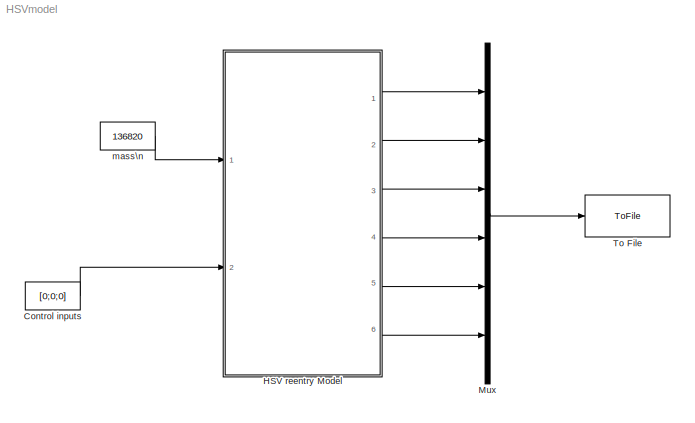
MODEL HSVmodel
KIND model
CONFIG InitFcn = Init_AeroSpaceBlk
BLOCK [Constant] Control inputs
  SID = 1
  Value = [0;0;0]
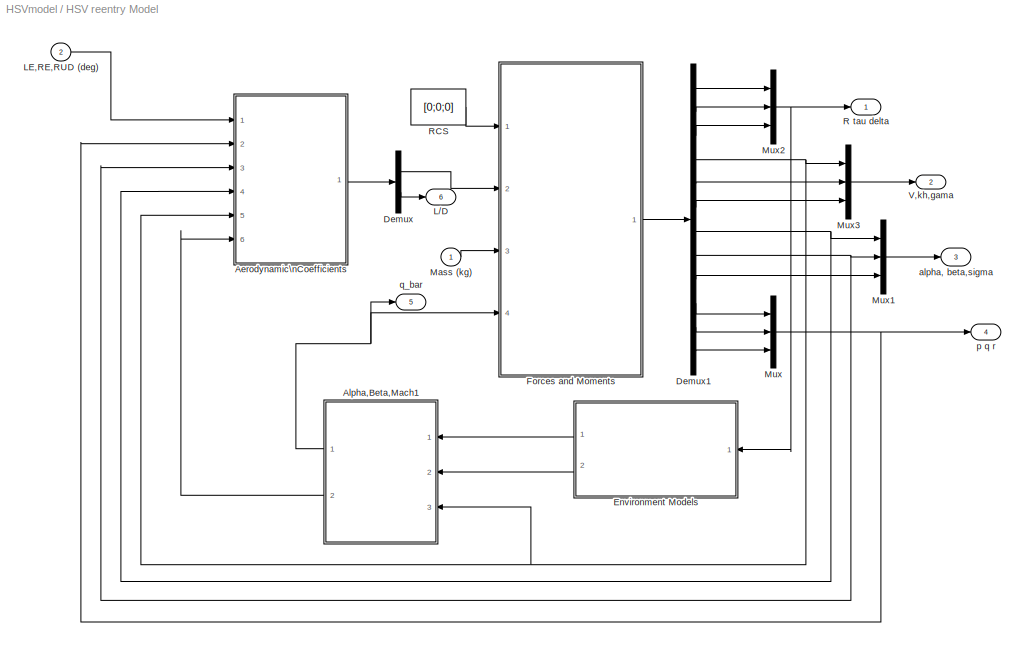
BLOCK [SubSystem] HSV reentry Model
  Ports = [2, 6]
  RequestExecContextInheritance = off
  SID = 2
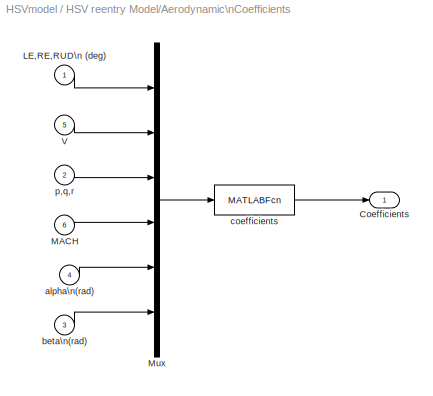
BLOCK [SubSystem] HSV reentry Model/Aerodynamic\nCoefficients
  Ports = [6, 1]
  RequestExecContextInheritance = off
  SID = 6
BLOCK [Outport] HSV reentry Model/Aerodynamic\nCoefficients/Coefficients
  IconDisplay = Port number
  InitialOutput = 0
  SID = 15
BLOCK [Inport] HSV reentry Model/Aerodynamic\nCoefficients/LE,RE,RUD\n (deg)
  IconDisplay = Port number
  SID = 7
BLOCK [Inport] HSV reentry Model/Aerodynamic\nCoefficients/MACH
  IconDisplay = Port number
  Port = 6
  SID = 12
BLOCK [Mux] HSV reentry Model/Aerodynamic\nCoefficients/Mux
  DisplayOption = bar
  Inputs = 6
  Ports = [6, 1]
  SID = 13
BLOCK [Inport] HSV reentry Model/Aerodynamic\nCoefficients/V
  IconDisplay = Port number
  Port = 5
  PortDimensions = 1
  SID = 11
BLOCK [Inport] HSV reentry Model/Aerodynamic\nCoefficients/alpha\n(rad)
  IconDisplay = Port number
  Port = 4
  SID = 10
BLOCK [Inport] HSV reentry Model/Aerodynamic\nCoefficients/beta\n(rad)
  IconDisplay = Port number
  Port = 3
  SID = 9
BLOCK [MATLABFcn] HSV reentry Model/Aerodynamic\nCoefficients/coefficients
  MATLABFcn = coefficients_new
  Output1D = off
  OutputDimensions = 7
  Ports = [1, 1]
  SID = 14
BLOCK [Inport] HSV reentry Model/Aerodynamic\nCoefficients/p,q,r
  IconDisplay = Port number
  Port = 2
  SID = 8
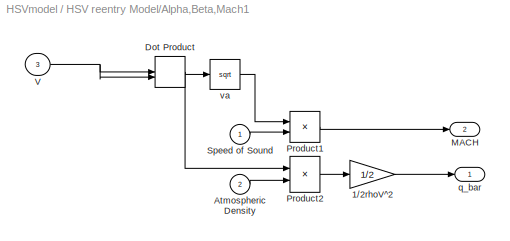
BLOCK [SubSystem] HSV reentry Model/Alpha,Beta,Mach1
  Ports = [3, 2]
  RequestExecContextInheritance = off
  SID = 16
BLOCK [Gain] HSV reentry Model/Alpha,Beta,Mach1/1//2rhoV^2
  Gain = 1/2
  SID = 20
BLOCK [Inport] HSV reentry Model/Alpha,Beta,Mach1/Atmospheric Density
  IconDisplay = Port number
  Port = 2
  SID = 18
BLOCK [DotProduct] HSV reentry Model/Alpha,Beta,Mach1/Dot Product
  OutDataTypeStr = Inherit: Inherit via internal rule
  SID = 21
BLOCK [Outport] HSV reentry Model/Alpha,Beta,Mach1/MACH
  IconDisplay = Port number
  Port = 2
  SID = 26
BLOCK [Product] HSV reentry Model/Alpha,Beta,Mach1/Product1
  Inputs = */
  Ports = [2, 1]
  RndMeth = Floor
  SID = 22
BLOCK [Product] HSV reentry Model/Alpha,Beta,Mach1/Product2
  Ports = [2, 1]
  RndMeth = Floor
  SID = 23
BLOCK [Inport] HSV reentry Model/Alpha,Beta,Mach1/Speed of Sound
  IconDisplay = Port number
  SID = 17
BLOCK [Inport] HSV reentry Model/Alpha,Beta,Mach1/V
  IconDisplay = Port number
  Port = 3
  PortDimensions = 1
  SID = 19
BLOCK [Outport] HSV reentry Model/Alpha,Beta,Mach1/q_bar
  IconDisplay = Port number
  InitialOutput = 0
  SID = 25
BLOCK [Math] HSV reentry Model/Alpha,Beta,Mach1/va
  Operator = sqrt
  Ports = [1, 1]
  SID = 24
BLOCK [Demux] HSV reentry Model/Demux
  DisplayOption = bar
  Outputs = [6;1]
  Ports = [1, 2]
  SID = 27
BLOCK [Demux] HSV reentry Model/Demux1
  DisplayOption = bar
  Outputs = 12
  Ports = [1, 12]
  SID = 28
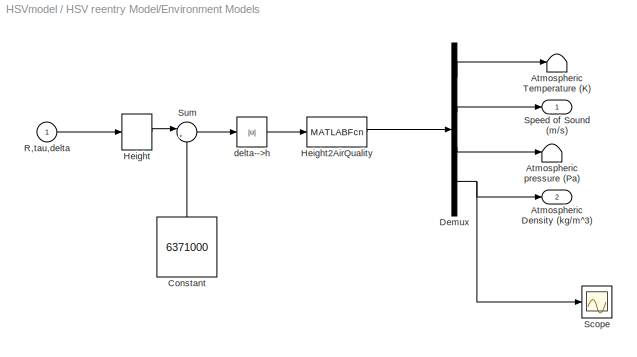
BLOCK [SubSystem] HSV reentry Model/Environment Models
  Ports = [1, 2]
  RequestExecContextInheritance = off
  SID = 29
BLOCK [Outport] HSV reentry Model/Environment Models/Atmospheric Density (kg//m^3)
  IconDisplay = Port number
  Port = 2
  SID = 41
BLOCK [Terminator] HSV reentry Model/Environment Models/Atmospheric Temperature (K)
  SID = 31
BLOCK [Terminator] HSV reentry Model/Environment Models/Atmospheric pressure (Pa)
  SID = 32
BLOCK [Constant] HSV reentry Model/Environment Models/Constant
  SID = 33
  Value = 6371000
BLOCK [Demux] HSV reentry Model/Environment Models/Demux
  Ports = [1, 4]
  SID = 34
BLOCK [Selector] HSV reentry Model/Environment Models/Height
  Indices = [1]
  InputPortWidth = 3
  Ports = [1, 1]
  SID = 35
BLOCK [MATLABFcn] HSV reentry Model/Environment Models/Height2AirQuality
  MATLABFcn = Sub_Height2AirQuality
  Output1D = off
  OutputDimensions = 4
  OutputSignalType = real
  Ports = [1, 1]
  SID = 36
BLOCK [Inport] HSV reentry Model/Environment Models/R,tau,delta
  IconDisplay = Port number
  PortDimensions = 3
  SID = 30
BLOCK [Scope] HSV reentry Model/Environment Models/Scope
  DataFormat = StructureWithTime
  Floating = off
  NumInputPorts = 1
  Ports = [1]
  SID = 37
  SampleTime = 0
  SaveName = ScopeData1
  ShowLegends = off
BLOCK [Outport] HSV reentry Model/Environment Models/Speed of Sound (m//s)
  IconDisplay = Port number
  SID = 40
BLOCK [Sum] HSV reentry Model/Environment Models/Sum
  IconShape = round
  InputSameDT = off
  Inputs = |+-
  OutDataTypeStr = Inherit: Inherit via internal rule
  Ports = [2, 1]
  SID = 38
  SaturateOnIntegerOverflow = off
BLOCK [Abs] HSV reentry Model/Environment Models/delta-->h
  SID = 39
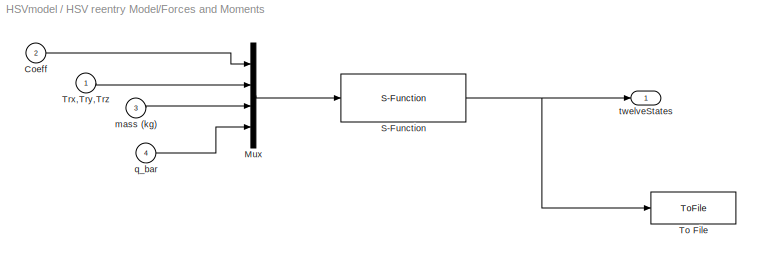
BLOCK [SubSystem] HSV reentry Model/Forces and Moments
  Ports = [4, 1]
  RequestExecContextInheritance = off
  SID = 42
BLOCK [Inport] HSV reentry Model/Forces and Moments/Coeff
  IconDisplay = Port number
  Port = 2
  SID = 44
BLOCK [Mux] HSV reentry Model/Forces and Moments/Mux
  DisplayOption = bar
  Ports = [4, 1]
  SID = 47
BLOCK [S-Function] HSV reentry Model/Forces and Moments/S-Function
  EnableBusSupport = off
  FunctionName = HSVmodel
  Ports = [1, 1]
  SID = 48
BLOCK [ToFile] HSV reentry Model/Forces and Moments/To File
  Filename = twelveStates.mat
  MatrixName = twelveStates
  Ports = [1]
  SID = 49
BLOCK [Inport] HSV reentry Model/Forces and Moments/Trx,Try,Trz
  IconDisplay = Port number
  SID = 43
BLOCK [Inport] HSV reentry Model/Forces and Moments/mass (kg)
  IconDisplay = Port number
  Port = 3
  SID = 45
BLOCK [Inport] HSV reentry Model/Forces and Moments/q_bar
  IconDisplay = Port number
  Port = 4
  SID = 46
BLOCK [Outport] HSV reentry Model/Forces and Moments/twelveStates
  IconDisplay = Port number
  SID = 50
BLOCK [Outport] HSV reentry Model/L//D
  IconDisplay = Port number
  InitialOutput = 0
  Port = 6
  SID = 60
BLOCK [Inport] HSV reentry Model/LE,RE,RUD (deg)
  IconDisplay = Port number
  Port = 2
  SID = 4
BLOCK [Inport] HSV reentry Model/Mass (kg)
  IconDisplay = Port number
  SID = 3
BLOCK [Mux] HSV reentry Model/Mux
  DisplayOption = bar
  Inputs = 3
  Ports = [3, 1]
  SID = 51
BLOCK [Mux] HSV reentry Model/Mux1
  DisplayOption = bar
  Inputs = 3
  Ports = [3, 1]
  SID = 52
BLOCK [Mux] HSV reentry Model/Mux2
  DisplayOption = bar
  Inputs = 3
  Ports = [3, 1]
  SID = 53
BLOCK [Mux] HSV reentry Model/Mux3
  DisplayOption = bar
  Inputs = 3
  Ports = [3, 1]
  SID = 54
BLOCK [Outport] HSV reentry Model/R tau delta
  IconDisplay = Port number
  InitialOutput = 0
  SID = 55
BLOCK [Constant] HSV reentry Model/RCS
  SID = 67
  Value = [0;0;0]
BLOCK [Outport] HSV reentry Model/V,kh,gama
  IconDisplay = Port number
  InitialOutput = 0
  Port = 2
  SID = 56
BLOCK [Outport] HSV reentry Model/alpha, beta,sigma
  IconDisplay = Port number
  InitialOutput = 0
  Port = 3
  SID = 57
BLOCK [Outport] HSV reentry Model/p q r
  IconDisplay = Port number
  InitialOutput = 0
  Port = 4
  SID = 58
BLOCK [Outport] HSV reentry Model/q_bar
  IconDisplay = Port number
  InitialOutput = 0
  Port = 5
  SID = 59
BLOCK [Mux] Mux
  DisplayOption = bar
  Inputs = 6
  Ports = [6, 1]
  SID = 61
BLOCK [ToFile] To File
  Filename = Allstates.mat
  MatrixName = Allstates
  Ports = [1]
  SID = 64
BLOCK [Constant] mass\n
  SID = 65
  Value = 136820
LINE Control inputs:1 -> HSV reentry Model:2
LINE HSV reentry Model/Aerodynamic\nCoefficients/LE,RE,RUD\n (deg):1 -> HSV reentry Model/Aerodynamic\nCoefficients/Mux:1
LINE HSV reentry Model/Aerodynamic\nCoefficients/MACH:1 -> HSV reentry Model/Aerodynamic\nCoefficients/Mux:4
LINE HSV reentry Model/Aerodynamic\nCoefficients/Mux:1 -> HSV reentry Model/Aerodynamic\nCoefficients/coefficients:1
LINE HSV reentry Model/Aerodynamic\nCoefficients/V:1 -> HSV reentry Model/Aerodynamic\nCoefficients/Mux:2
LINE HSV reentry Model/Aerodynamic\nCoefficients/alpha\n(rad):1 -> HSV reentry Model/Aerodynamic\nCoefficients/Mux:5
LINE HSV reentry Model/Aerodynamic\nCoefficients/beta\n(rad):1 -> HSV reentry Model/Aerodynamic\nCoefficients/Mux:6
LINE HSV reentry Model/Aerodynamic\nCoefficients/coefficients:1 -> HSV reentry Model/Aerodynamic\nCoefficients/Coefficients:1
LINE HSV reentry Model/Aerodynamic\nCoefficients/p,q,r:1 -> HSV reentry Model/Aerodynamic\nCoefficients/Mux:3
LINE HSV reentry Model/Aerodynamic\nCoefficients:1 -> HSV reentry Model/Demux:1
LINE HSV reentry Model/Alpha,Beta,Mach1/1//2rhoV^2:1 -> HSV reentry Model/Alpha,Beta,Mach1/q_bar:1
LINE HSV reentry Model/Alpha,Beta,Mach1/Atmospheric Density:1 -> HSV reentry Model/Alpha,Beta,Mach1/Product2:2
NET HSV reentry Model/Alpha,Beta,Mach1/Dot Product:1 -> HSV reentry Model/Alpha,Beta,Mach1/Product2:1, HSV reentry Model/Alpha,Beta,Mach1/va:1
LINE HSV reentry Model/Alpha,Beta,Mach1/Product1:1 -> HSV reentry Model/Alpha,Beta,Mach1/MACH:1
LINE HSV reentry Model/Alpha,Beta,Mach1/Product2:1 -> HSV reentry Model/Alpha,Beta,Mach1/1//2rhoV^2:1
LINE HSV reentry Model/Alpha,Beta,Mach1/Speed of Sound:1 -> HSV reentry Model/Alpha,Beta,Mach1/Product1:2
NET HSV reentry Model/Alpha,Beta,Mach1/V:1 -> HSV reentry Model/Alpha,Beta,Mach1/Dot Product:1, HSV reentry Model/Alpha,Beta,Mach1/Dot Product:2
LINE HSV reentry Model/Alpha,Beta,Mach1/va:1 -> HSV reentry Model/Alpha,Beta,Mach1/Product1:1
NET HSV reentry Model/Alpha,Beta,Mach1:1 -> HSV reentry Model/Forces and Moments:4, HSV reentry Model/q_bar:1
LINE HSV reentry Model/Alpha,Beta,Mach1:2 -> HSV reentry Model/Aerodynamic\nCoefficients:6
LINE HSV reentry Model/Demux1:1 -> HSV reentry Model/Mux2:1
LINE HSV reentry Model/Demux1:10 -> HSV reentry Model/Mux:1
LINE HSV reentry Model/Demux1:11 -> HSV reentry Model/Mux:2
LINE HSV reentry Model/Demux1:12 -> HSV reentry Model/Mux:3
LINE HSV reentry Model/Demux1:2 -> HSV reentry Model/Mux2:2
LINE HSV reentry Model/Demux1:3 -> HSV reentry Model/Mux2:3
NET HSV reentry Model/Demux1:4 -> HSV reentry Model/Aerodynamic\nCoefficients:5, HSV reentry Model/Alpha,Beta,Mach1:3, HSV reentry Model/Mux3:1
LINE HSV reentry Model/Demux1:5 -> HSV reentry Model/Mux3:2
LINE HSV reentry Model/Demux1:6 -> HSV reentry Model/Mux3:3
NET HSV reentry Model/Demux1:7 -> HSV reentry Model/Aerodynamic\nCoefficients:4, HSV reentry Model/Mux1:1
NET HSV reentry Model/Demux1:8 -> HSV reentry Model/Aerodynamic\nCoefficients:3, HSV reentry Model/Mux1:2
LINE HSV reentry Model/Demux1:9 -> HSV reentry Model/Mux1:3
LINE HSV reentry Model/Demux:1 -> HSV reentry Model/Forces and Moments:2
LINE HSV reentry Model/Demux:2 -> HSV reentry Model/L//D:1
LINE HSV reentry Model/Environment Models/Constant:1 -> HSV reentry Model/Environment Models/Sum:2
LINE HSV reentry Model/Environment Models/Demux:1 -> HSV reentry Model/Environment Models/Atmospheric Temperature (K):1
LINE HSV reentry Model/Environment Models/Demux:2 -> HSV reentry Model/Environment Models/Speed of Sound (m//s):1
LINE HSV reentry Model/Environment Models/Demux:3 -> HSV reentry Model/Environment Models/Atmospheric pressure (Pa):1
NET HSV reentry Model/Environment Models/Demux:4 -> HSV reentry Model/Environment Models/Atmospheric Density (kg//m^3):1, HSV reentry Model/Environment Models/Scope:1
LINE HSV reentry Model/Environment Models/Height2AirQuality:1 -> HSV reentry Model/Environment Models/Demux:1
LINE HSV reentry Model/Environment Models/Height:1 -> HSV reentry Model/Environment Models/Sum:1
LINE HSV reentry Model/Environment Models/R,tau,delta:1 -> HSV reentry Model/Environment Models/Height:1
LINE HSV reentry Model/Environment Models/Sum:1 -> HSV reentry Model/Environment Models/delta-->h:1
LINE HSV reentry Model/Environment Models/delta-->h:1 -> HSV reentry Model/Environment Models/Height2AirQuality:1
LINE HSV reentry Model/Environment Models:1 -> HSV reentry Model/Alpha,Beta,Mach1:1
LINE HSV reentry Model/Environment Models:2 -> HSV reentry Model/Alpha,Beta,Mach1:2
LINE HSV reentry Model/Forces and Moments/Coeff:1 -> HSV reentry Model/Forces and Moments/Mux:1
LINE HSV reentry Model/Forces and Moments/Mux:1 -> HSV reentry Model/Forces and Moments/S-Function:1
NET HSV reentry Model/Forces and Moments/S-Function:1 -> HSV reentry Model/Forces and Moments/To File:1, HSV reentry Model/Forces and Moments/twelveStates:1
LINE HSV reentry Model/Forces and Moments/Trx,Try,Trz:1 -> HSV reentry Model/Forces and Moments/Mux:2
LINE HSV reentry Model/Forces and Moments/mass (kg):1 -> HSV reentry Model/Forces and Moments/Mux:3
LINE HSV reentry Model/Forces and Moments/q_bar:1 -> HSV reentry Model/Forces and Moments/Mux:4
LINE HSV reentry Model/Forces and Moments:1 -> HSV reentry Model/Demux1:1
LINE HSV reentry Model/LE,RE,RUD (deg):1 -> HSV reentry Model/Aerodynamic\nCoefficients:1
LINE HSV reentry Model/Mass (kg):1 -> HSV reentry Model/Forces and Moments:3
LINE HSV reentry Model/Mux1:1 -> HSV reentry Model/alpha, beta,sigma:1
NET HSV reentry Model/Mux2:1 -> HSV reentry Model/Environment Models:1, HSV reentry Model/R tau delta:1
LINE HSV reentry Model/Mux3:1 -> HSV reentry Model/V,kh,gama:1
NET HSV reentry Model/Mux:1 -> HSV reentry Model/Aerodynamic\nCoefficients:2, HSV reentry Model/p q r:1
LINE HSV reentry Model/RCS:1 -> HSV reentry Model/Forces and Moments:1
LINE HSV reentry Model:1 -> Mux:1
LINE HSV reentry Model:2 -> Mux:2
LINE HSV reentry Model:3 -> Mux:3
LINE HSV reentry Model:4 -> Mux:4
LINE HSV reentry Model:5 -> Mux:5
LINE HSV reentry Model:6 -> Mux:6
LINE Mux:1 -> To File:1
LINE mass\n:1 -> HSV reentry Model:1
note: NET lines group one-source signal fan-out (src -> all destinations, sorted); 1:1 wires keep LINE
